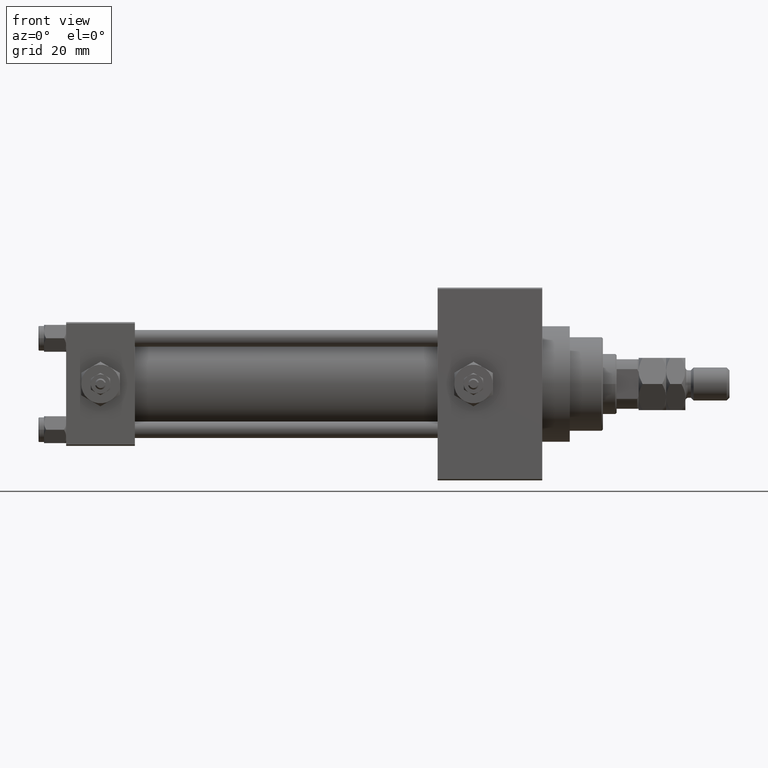
[diagram: clean part render]
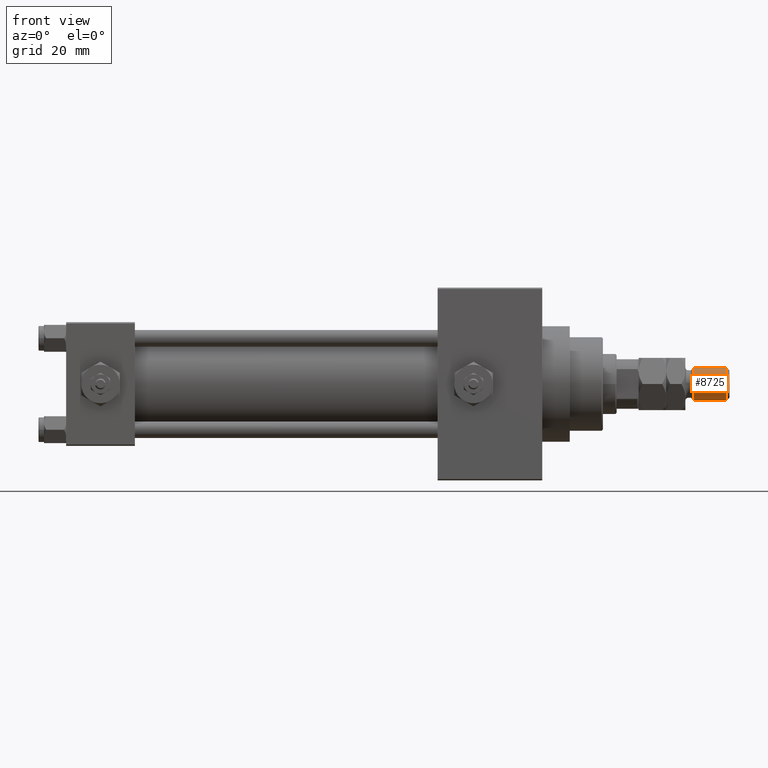
[diagram: same view with one face highlighted and labeled with its STEP entity id]
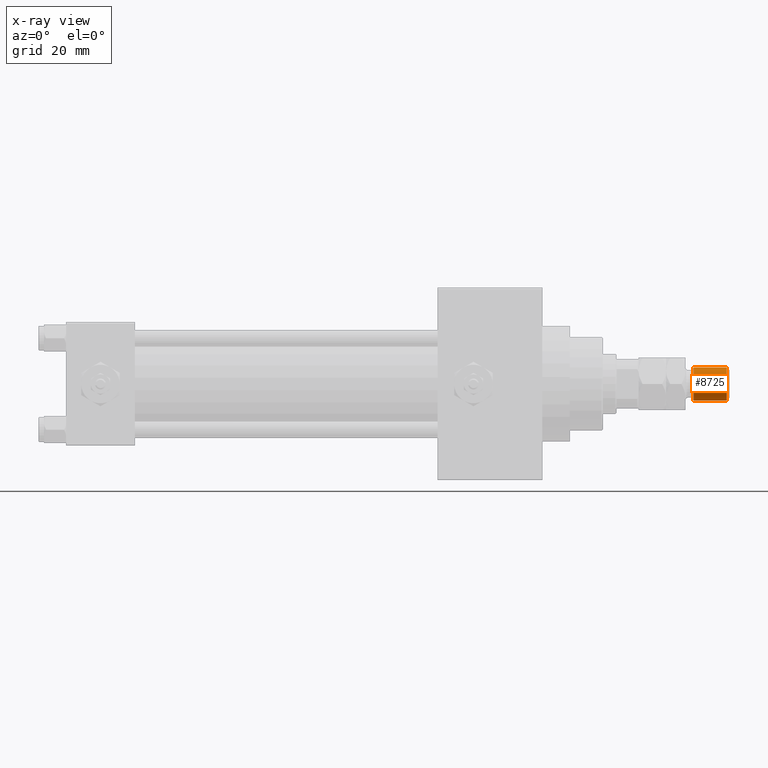
[diagram: x-ray of the same camera — body ghosted, the highlighted face saturated]
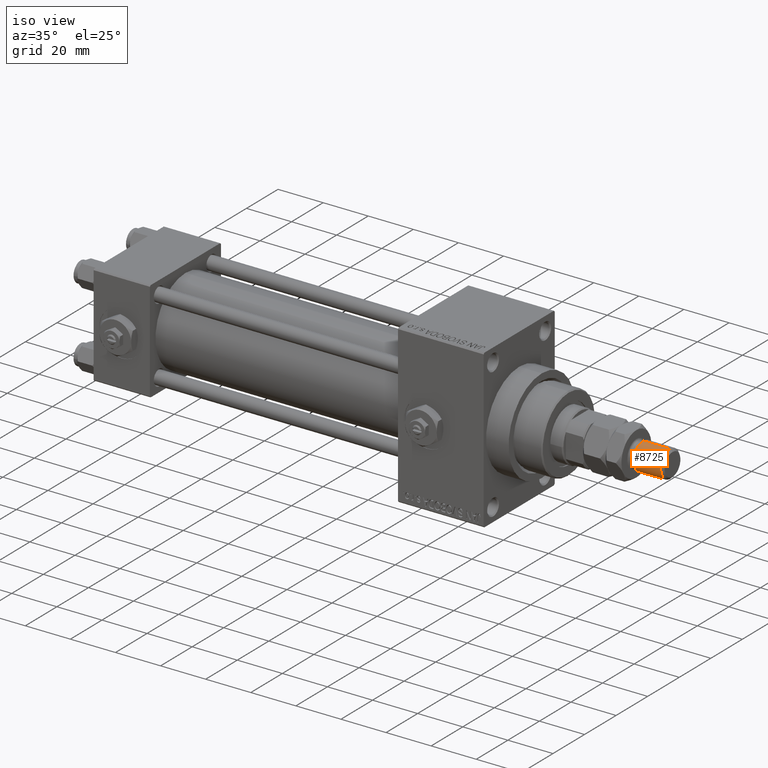
[diagram: same view with one face highlighted and labeled with its STEP entity id]
A machine part, front view. The second image highlights one B-rep face of the part: STEP entity #8725.
The next image is the same camera in x-ray: the body ghosted, the highlighted face saturated — about 0% of this face is hidden behind the body in this view.
A second angle (iso view) of the same face is appended — the face is thin or edge-on in the first view.
In plain terms, the highlighted cylindrical surface (edge-blend (fillet) strip) has radius 6 mm, axis along (-1, -0, 0).
Its self-contained STEP definition (entity closure, byte-faithful):
#785 = VERTEX_POINT ( 'NONE', #49994 ) ;
#986 = ORIENTED_EDGE ( 'NONE', *, *, #30815, .F. ) ;
#4278 = DIRECTION ( 'NONE',  ( 0.000000000000000000, 0.000000000000000000, -1.000000000000000000 ) ) ;
#4957 = DIRECTION ( 'NONE',  ( -0.000000000000000000, -0.000000000000000000, -1.000000000000000000 ) ) ;
#5499 = LINE ( 'NONE', #48059, #5665 ) ;
#5665 = VECTOR ( 'NONE', #21132, 1000.000000000000000 ) ;
#7291 = LINE ( 'NONE', #30362, #23700 ) ;
#8725 = ADVANCED_FACE ( 'NONE', ( #28546 ), #16493, .T. ) ;
#8766 = DIRECTION ( 'NONE',  ( -0.000000000000000000, -0.000000000000000000, 1.000000000000000000 ) ) ;
#9526 = CIRCLE ( 'NONE', #29956, 6.000000000000000888 ) ;
#12752 = CARTESIAN_POINT ( 'NONE',  ( 6.000000000000000888, 7.347880794884120722E-16, 20.00000000000000711 ) ) ;
#13623 = EDGE_CURVE ( 'NONE', #785, #32968, #5499, .T. ) ;
#13843 = CARTESIAN_POINT ( 'NONE',  ( 0.000000000000000000, 0.000000000000000000, 33.00000000000000000 ) ) ;
#14726 = VERTEX_POINT ( 'NONE', #12752 ) ;
#16493 = CYLINDRICAL_SURFACE ( 'NONE', #49774, 6.000000000000000888 ) ;
#16709 = CARTESIAN_POINT ( 'NONE',  ( 0.000000000000000000, 0.000000000000000000, 20.00000000000000711 ) ) ;
#18837 = VERTEX_POINT ( 'NONE', #19552 ) ;
#19552 = CARTESIAN_POINT ( 'NONE',  ( 6.000000000000000888, 7.347880794884120722E-16, 32.00000000000000000 ) ) ;
#20600 = DIRECTION ( 'NONE',  ( -1.000000000000000000, 0.000000000000000000, 0.000000000000000000 ) ) ;
#21132 = DIRECTION ( 'NONE',  ( -0.000000000000000000, -0.000000000000000000, -1.000000000000000000 ) ) ;
#23700 = VECTOR ( 'NONE', #45983, 1000.000000000000000 ) ;
#24408 = DIRECTION ( 'NONE',  ( 1.000000000000000000, 0.000000000000000000, 0.000000000000000000 ) ) ;
#26548 = ORIENTED_EDGE ( 'NONE', *, *, #13623, .T. ) ;
#26900 = EDGE_LOOP ( 'NONE', ( #986, #37150, #26548, #27154 ) ) ;
#27154 = ORIENTED_EDGE ( 'NONE', *, *, #49475, .T. ) ;
#28546 = FACE_OUTER_BOUND ( 'NONE', #26900, .T. ) ;
#29956 = AXIS2_PLACEMENT_3D ( 'NONE', #16709, #8766, #24408 ) ;
#30362 = CARTESIAN_POINT ( 'NONE',  ( 6.000000000000000888, 7.347880794884120722E-16, 33.00000000000000000 ) ) ;
#30815 = EDGE_CURVE ( 'NONE', #18837, #14726, #7291, .T. ) ;
#31381 = EDGE_CURVE ( 'NONE', #18837, #785, #50736, .T. ) ;
#32968 = VERTEX_POINT ( 'NONE', #44881 ) ;
#37150 = ORIENTED_EDGE ( 'NONE', *, *, #31381, .T. ) ;
#42473 = CARTESIAN_POINT ( 'NONE',  ( 0.000000000000000000, 0.000000000000000000, 32.00000000000000000 ) ) ;
#42729 = DIRECTION ( 'NONE',  ( 1.000000000000000000, 0.000000000000000000, 0.000000000000000000 ) ) ;
#44881 = CARTESIAN_POINT ( 'NONE',  ( -6.000000000000000888, 0.000000000000000000, 20.00000000000000711 ) ) ;
#45983 = DIRECTION ( 'NONE',  ( -0.000000000000000000, -0.000000000000000000, -1.000000000000000000 ) ) ;
#48059 = CARTESIAN_POINT ( 'NONE',  ( -6.000000000000000888, 0.000000000000000000, 33.00000000000000000 ) ) ;
#49063 = AXIS2_PLACEMENT_3D ( 'NONE', #42473, #4278, #42729 ) ;
#49475 = EDGE_CURVE ( 'NONE', #32968, #14726, #9526, .T. ) ;
#49774 = AXIS2_PLACEMENT_3D ( 'NONE', #13843, #4957, #20600 ) ;
#49994 = CARTESIAN_POINT ( 'NONE',  ( -6.000000000000000888, 0.000000000000000000, 32.00000000000000000 ) ) ;
#50736 = CIRCLE ( 'NONE', #49063, 6.000000000000000888 ) ;